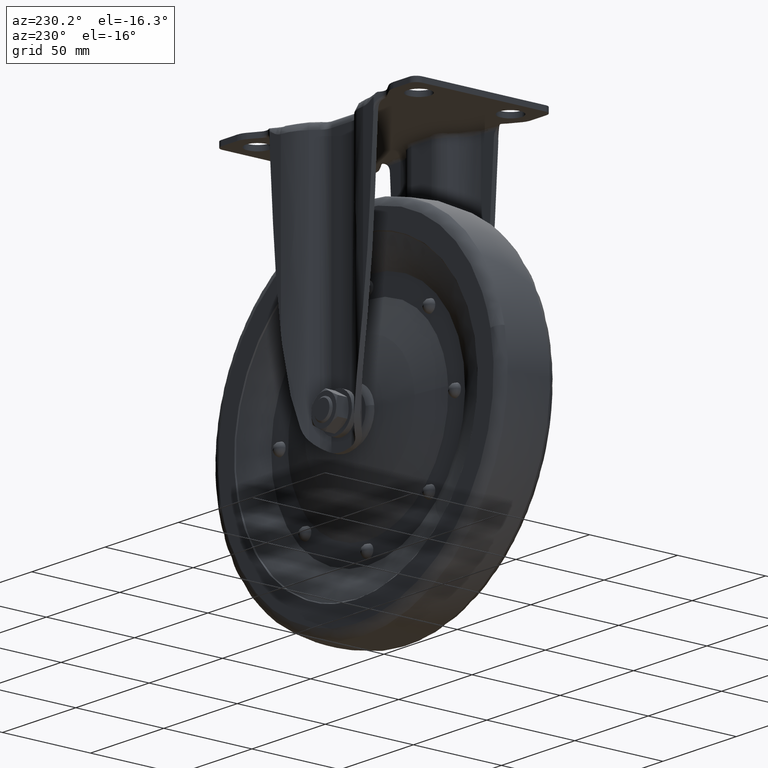
[diagram: clean part render]
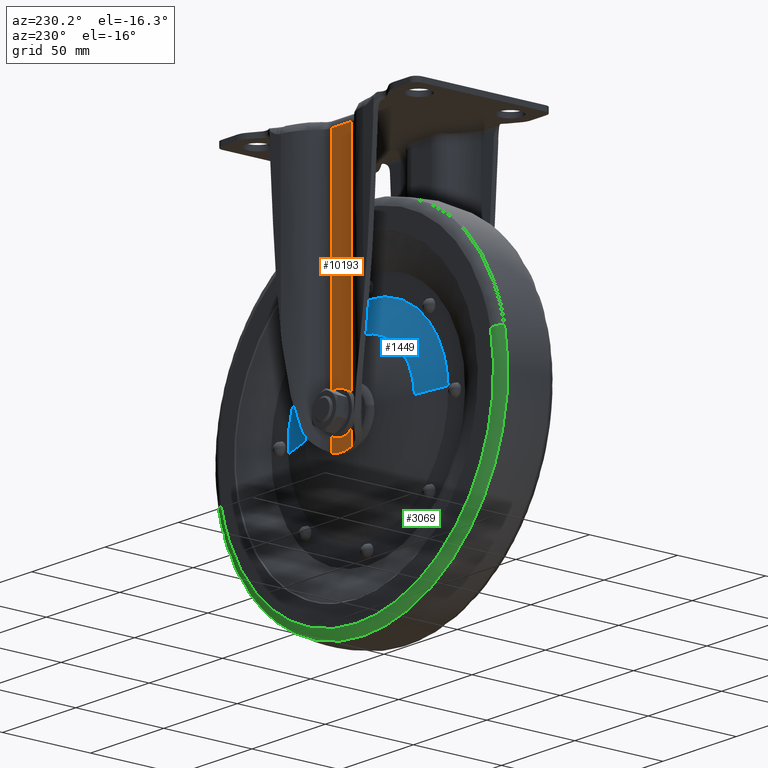
[diagram: same view with three faces highlighted in distinct colors, each labeled with its STEP entity id]
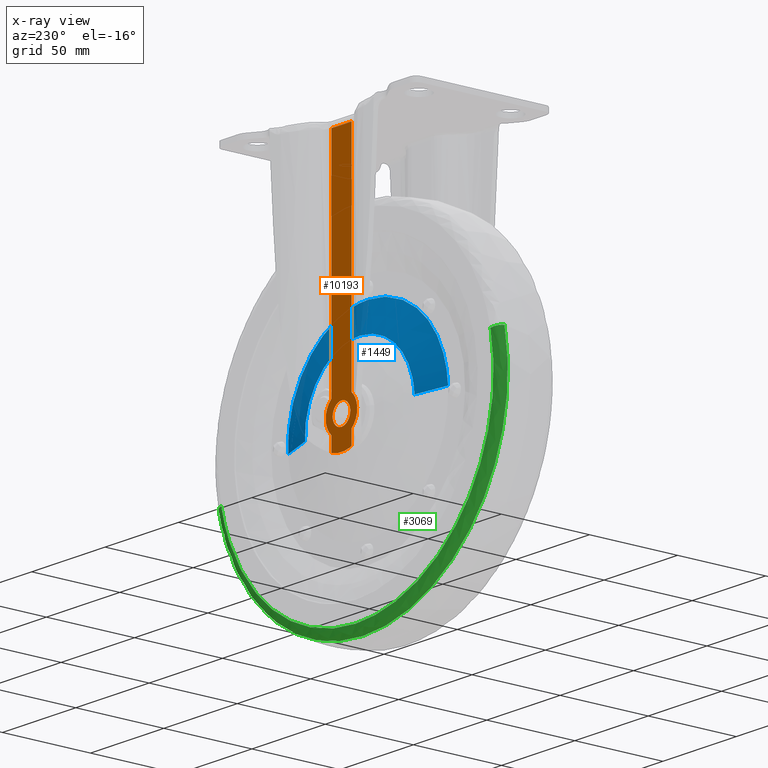
[diagram: x-ray of the same camera — body ghosted, the three highlighted faces saturated]
A machine part, auxiliary view with three faces highlighted in distinct colors.
The next image is the same camera in x-ray (body ghosted, the three faces saturated) — at least one of them is partly hidden behind the body in this view.
Their STEP definitions:

[orange] entity #10193 — the highlighted face is a freeform B-spline surface patch.
#5511=CARTESIAN_POINT('',(-5.999771538373601,24.149999999999999,-136.052359214299600));
#5512=VERTEX_POINT('',#5511);
#5518=CARTESIAN_POINT('',(0.0,24.149999999999999,-130.0));
#5519=VERTEX_POINT('',#5518);
#5520=CARTESIAN_POINT('',(0.0,24.149999999999999,-130.0));
#5521=CARTESIAN_POINT('',(-6.0,24.150000000000009,-130.0));
#5522=CARTESIAN_POINT('',(-6.0,24.149999999999999,-136.0));
#5523=CARTESIAN_POINT('',(-6.0,24.150000000000006,-136.026180105578850));
#5524=CARTESIAN_POINT('',(-5.999771538373603,24.150000000000009,-136.052359214299600));
#5532=(BOUNDED_CURVE()B_SPLINE_CURVE(2,(#5520,#5521,#5522,#5523,#5524),.UNSPECIFIED.,.F.,.U.)B_SPLINE_CURVE_WITH_KNOTS((3,2,3),(0.500000000000000,0.750000000000000,0.751539894373426),.UNSPECIFIED.)CURVE()GEOMETRIC_REPRESENTATION_ITEM()RATIONAL_B_SPLINE_CURVE((1.0,0.707106781186548,1.0,0.998195901521338,0.996414028011447))REPRESENTATION_ITEM(''));
#5533=EDGE_CURVE('',#5519,#5512,#5532,.T.);
#5535=CARTESIAN_POINT('',(5.999771538373601,24.149999999999999,-135.947640785700400));
#5536=VERTEX_POINT('',#5535);
#5537=CARTESIAN_POINT('',(5.999771538373601,24.150000000000006,-135.947640785700460));
#5538=CARTESIAN_POINT('',(5.947867262271819,24.150000000000002,-129.999999999999970));
#5539=CARTESIAN_POINT('',(0.0,24.149999999999999,-130.0));
#5547=(BOUNDED_CURVE()B_SPLINE_CURVE(2,(#5537,#5538,#5539),.UNSPECIFIED.,.F.,.U.)B_SPLINE_CURVE_WITH_KNOTS((3,3),(0.251539894373427,0.500000000000000),.UNSPECIFIED.)CURVE()GEOMETRIC_REPRESENTATION_ITEM()RATIONAL_B_SPLINE_CURVE((0.996414028011446,0.708910879665210,1.0))REPRESENTATION_ITEM(''));
#5548=EDGE_CURVE('',#5536,#5519,#5547,.T.);
#5594=CARTESIAN_POINT('',(0.0,24.149999999999999,-142.0));
#5595=VERTEX_POINT('',#5594);
#5596=CARTESIAN_POINT('',(0.0,24.149999999999999,-142.0));
#5597=CARTESIAN_POINT('',(6.0,24.150000000000009,-142.000000000000090));
#5598=CARTESIAN_POINT('',(6.0,24.149999999999999,-136.0));
#5599=CARTESIAN_POINT('',(5.999999999999999,24.150000000000002,-135.973819894421070));
#5600=CARTESIAN_POINT('',(5.999771538373601,24.150000000000002,-135.947640785700460));
#5608=(BOUNDED_CURVE()B_SPLINE_CURVE(2,(#5596,#5597,#5598,#5599,#5600),.UNSPECIFIED.,.F.,.U.)B_SPLINE_CURVE_WITH_KNOTS((3,2,3),(0.0,0.250000000000000,0.251539894373427),.UNSPECIFIED.)CURVE()GEOMETRIC_REPRESENTATION_ITEM()RATIONAL_B_SPLINE_CURVE((1.0,0.707106781186548,1.0,0.998195901521337,0.996414028011446))REPRESENTATION_ITEM(''));
#5609=EDGE_CURVE('',#5595,#5536,#5608,.T.);
#5611=CARTESIAN_POINT('',(-5.999771538373601,24.150000000000006,-136.052359214299600));
#5612=CARTESIAN_POINT('',(-5.947867262271819,24.150000000000002,-142.000000000000060));
#5613=CARTESIAN_POINT('',(0.0,24.149999999999999,-142.0));
#5621=(BOUNDED_CURVE()B_SPLINE_CURVE(2,(#5611,#5612,#5613),.UNSPECIFIED.,.F.,.U.)B_SPLINE_CURVE_WITH_KNOTS((3,3),(0.751539894373427,1.0),.UNSPECIFIED.)CURVE()GEOMETRIC_REPRESENTATION_ITEM()RATIONAL_B_SPLINE_CURVE((0.996414028011446,0.708910879665210,1.0))REPRESENTATION_ITEM(''));
#5622=EDGE_CURVE('',#5512,#5595,#5621,.T.);
#6314=CARTESIAN_POINT('',(-6.849839000000090,24.149999999999999,-144.285059183498790));
#6315=VERTEX_POINT('',#6314);
#6316=CARTESIAN_POINT('',(-6.849839000000079,24.149999999999999,-127.714940816501200));
#6317=VERTEX_POINT('',#6316);
#6371=CARTESIAN_POINT('',(-6.849839000000090,24.149999999999999,-144.285059183498790));
#6372=CARTESIAN_POINT('',(-7.419470051518438,24.150000000000102,-143.814259623367600));
#6373=CARTESIAN_POINT('',(-8.391502037472399,24.149999999999888,-142.825110485590190));
#6374=CARTESIAN_POINT('',(-9.619607238733465,24.149999999999991,-140.968583676639610));
#6375=CARTESIAN_POINT('',(-10.352037019948041,24.150000000000031,-139.124508411979210));
#6376=CARTESIAN_POINT('',(-10.748782584042861,24.149999999999991,-137.088640567818000));
#6377=CARTESIAN_POINT('',(-10.785539610436301,24.149999999999860,-135.305981759789290));
#6378=CARTESIAN_POINT('',(-10.489829482999200,24.149999999999981,-133.451914296509390));
#6379=CARTESIAN_POINT('',(-9.859774185208210,24.150000000000080,-131.525376578643200));
#6380=CARTESIAN_POINT('',(-8.695234859135695,24.149999999999039,-129.503432948488690));
#6381=CARTESIAN_POINT('',(-7.495463471569267,24.150000000000990,-128.248488515776390));
#6382=CARTESIAN_POINT('',(-6.849839000000079,24.149999999999999,-127.714940816501200));
#6383=B_SPLINE_CURVE_WITH_KNOTS('',3,(#6371,#6372,#6373,#6374,#6375,#6376,#6377,#6378,#6379,#6380,#6381,#6382),.UNSPECIFIED.,.F.,.U.,(4,1,1,1,1,1,1,1,1,4),(0.000000353534343,2.217004586097204,4.138505752643534,6.651238746744516,8.129314732941690,10.346219356164680,11.972127129180910,13.745784986751250,16.406289665833832,18.918944419435778),.UNSPECIFIED.);
#6384=EDGE_CURVE('',#6315,#6317,#6383,.T.);
#6403=CARTESIAN_POINT('',(6.849839999999920,24.149999999999999,-127.714941643271200));
#6404=VERTEX_POINT('',#6403);
#6405=CARTESIAN_POINT('',(6.849839999999920,24.149999999999999,-144.285058356728800));
#6406=VERTEX_POINT('',#6405);
#6466=CARTESIAN_POINT('',(6.849839999999920,24.149999999999999,-127.714941643271200));
#6467=CARTESIAN_POINT('',(7.723625241780807,24.150000000000020,-128.436549430988090));
#6468=CARTESIAN_POINT('',(8.975362908872892,24.150000000000031,-129.860067653499190));
#6469=CARTESIAN_POINT('',(10.075964529380361,24.149999999999942,-132.078600665119500));
#6470=CARTESIAN_POINT('',(10.639754744213880,24.150000000000031,-134.076873541679990));
#6471=CARTESIAN_POINT('',(10.829892451871061,24.150000000000261,-136.198131935289100));
#6472=CARTESIAN_POINT('',(10.512055102018820,24.149999999999739,-138.756022261958490));
#6473=CARTESIAN_POINT('',(9.666755658389890,24.150000000000230,-140.884250785403110));
#6474=CARTESIAN_POINT('',(8.386562930512637,24.150000000000031,-142.819198183097910));
#6475=CARTESIAN_POINT('',(7.495477718575718,24.149999999999981,-143.751511670251010));
#6476=CARTESIAN_POINT('',(6.849839999999920,24.149999999999999,-144.285058356728800));
#6477=B_SPLINE_CURVE_WITH_KNOTS('',3,(#6466,#6467,#6468,#6469,#6470,#6471,#6472,#6473,#6474,#6475,#6476),.UNSPECIFIED.,.F.,.U.,(4,1,1,1,1,1,1,1,4),(0.000000353485614,3.399486762731923,5.616583442938886,7.390223022321498,9.607191062845224,11.972125486964490,15.076051585206860,16.406287415380909,18.918941824342099),.UNSPECIFIED.);
#6478=EDGE_CURVE('',#6404,#6406,#6477,.T.);
#8136=CARTESIAN_POINT('',(-5.375360051059539,24.149999999999999,-152.764097949446490));
#8137=VERTEX_POINT('',#8136);
#8138=CARTESIAN_POINT('',(5.375360058640630,24.149999999999999,-152.764098843184000));
#8139=VERTEX_POINT('',#8138);
#8140=CARTESIAN_POINT('',(-5.375360051059539,24.149999999999999,-152.764097949446490));
#8141=CARTESIAN_POINT('',(-0.000000120901544,24.150000000000002,-154.264013095344640));
#8142=CARTESIAN_POINT('',(5.375360058640680,24.149999999999999,-152.764098843184200));
#8150=(BOUNDED_CURVE()B_SPLINE_CURVE(2,(#8140,#8141,#8142),.UNSPECIFIED.,.F.,.U.)CURVE()GEOMETRIC_REPRESENTATION_ITEM()QUASI_UNIFORM_CURVE()RATIONAL_B_SPLINE_CURVE((1.0,0.963204940594268,1.0))REPRESENTATION_ITEM(''));
#8151=EDGE_CURVE('',#8137,#8139,#8150,.T.);
#8420=CARTESIAN_POINT('',(-6.849839000000090,24.149999999999999,-152.286718354286510));
#8421=VERTEX_POINT('',#8420);
#8451=CARTESIAN_POINT('',(-6.849839000000052,24.149999999999999,-152.286718354286390));
#8452=CARTESIAN_POINT('',(-6.122390716286197,24.150000000000002,-152.555650132884720));
#8453=CARTESIAN_POINT('',(-5.375360051059494,24.149999999999999,-152.764097949446300));
#8461=(BOUNDED_CURVE()B_SPLINE_CURVE(2,(#8451,#8452,#8453),.UNSPECIFIED.,.F.,.U.)CURVE()GEOMETRIC_REPRESENTATION_ITEM()QUASI_UNIFORM_CURVE()RATIONAL_B_SPLINE_CURVE((1.0,0.999159716856303,1.0))REPRESENTATION_ITEM(''));
#8462=EDGE_CURVE('',#8421,#8137,#8461,.T.);
#8487=CARTESIAN_POINT('',(6.849840000000000,24.149999999999402,-152.286718354286510));
#8488=VERTEX_POINT('',#8487);
#8489=CARTESIAN_POINT('',(5.375360058640630,24.149999999999999,-152.764098843184000));
#8490=CARTESIAN_POINT('',(6.122391154392680,24.150000000000002,-152.555650340612200));
#8491=CARTESIAN_POINT('',(6.849839999999954,24.149999999999999,-152.286718354286390));
#8499=(BOUNDED_CURVE()B_SPLINE_CURVE(2,(#8489,#8490,#8491),.UNSPECIFIED.,.F.,.U.)CURVE()GEOMETRIC_REPRESENTATION_ITEM()QUASI_UNIFORM_CURVE()RATIONAL_B_SPLINE_CURVE((1.0,0.999159715559840,1.0))REPRESENTATION_ITEM(''));
#8500=EDGE_CURVE('',#8139,#8488,#8499,.T.);
#10126=CARTESIAN_POINT('',(6.849839999999920,24.149999999999999,-4.700000000000000));
#10127=VERTEX_POINT('',#10126);
#10128=CARTESIAN_POINT('',(6.849839999999920,24.149999999999999,-127.714941643271200));
#10129=CARTESIAN_POINT('',(6.849839999999920,24.149999999999999,-4.700000000000000));
#10130=QUASI_UNIFORM_CURVE('',1,(#10128,#10129),.UNSPECIFIED.,.F.,.U.);
#10131=EDGE_CURVE('',#6404,#10127,#10130,.T.);
#10148=CARTESIAN_POINT('',(6.849840000000000,24.149999999999402,-152.286718354286510));
#10149=CARTESIAN_POINT('',(6.849839999999920,24.149999999999999,-144.285058356728800));
#10150=QUASI_UNIFORM_CURVE('',1,(#10148,#10149),.UNSPECIFIED.,.F.,.U.);
#10151=EDGE_CURVE('',#8488,#6406,#10150,.T.);
#10156=CARTESIAN_POINT('',(-11.823924958328830,24.149999999999999,2.732559701023340));
#10157=CARTESIAN_POINT('',(-11.823924958328830,24.149999999999999,-160.932563480471000));
#10158=CARTESIAN_POINT('',(11.823925535003770,24.149999999999999,2.732559701023340));
#10159=CARTESIAN_POINT('',(11.823925535003770,24.149999999999999,-160.932563480471000));
#10160=B_SPLINE_SURFACE_WITH_KNOTS('',1,1,((#10156,#10158),(#10157,#10159)),.UNSPECIFIED.,.F.,.F.,.U.,(2,2),(2,2),(0.0,163.665123181494410),(0.0,23.647850493332601),.UNSPECIFIED.);
#10161=CARTESIAN_POINT('',(-6.849839000000090,24.149999999999999,-152.286718354286510));
#10162=CARTESIAN_POINT('',(-6.849839000000090,24.149999999999999,-144.285059183498790));
#10163=QUASI_UNIFORM_CURVE('',1,(#10161,#10162),.UNSPECIFIED.,.F.,.U.);
#10164=EDGE_CURVE('',#8421,#6315,#10163,.T.);
#10165=ORIENTED_EDGE('',*,*,#10164,.T.);
#10166=ORIENTED_EDGE('',*,*,#6384,.T.);
#10167=CARTESIAN_POINT('',(-6.849839000000090,24.149999999999999,-4.700000000000000));
#10168=VERTEX_POINT('',#10167);
#10169=CARTESIAN_POINT('',(-6.849839000000079,24.149999999999999,-127.714940816501200));
#10170=CARTESIAN_POINT('',(-6.849839000000090,24.149999999999999,-4.700000000000000));
#10171=QUASI_UNIFORM_CURVE('',1,(#10169,#10170),.UNSPECIFIED.,.F.,.U.);
#10172=EDGE_CURVE('',#6317,#10168,#10171,.T.);
#10173=ORIENTED_EDGE('',*,*,#10172,.T.);
#10174=CARTESIAN_POINT('',(-6.849839000000090,24.149999999999999,-4.700000000000000));
#10175=CARTESIAN_POINT('',(6.849839999999920,24.149999999999999,-4.700000000000000));
#10176=QUASI_UNIFORM_CURVE('',1,(#10174,#10175),.UNSPECIFIED.,.F.,.U.);
#10177=EDGE_CURVE('',#10168,#10127,#10176,.T.);
#10178=ORIENTED_EDGE('',*,*,#10177,.T.);
#10179=ORIENTED_EDGE('',*,*,#10131,.F.);
#10180=ORIENTED_EDGE('',*,*,#6478,.T.);
#10181=ORIENTED_EDGE('',*,*,#10151,.F.);
#10182=ORIENTED_EDGE('',*,*,#8500,.F.);
#10183=ORIENTED_EDGE('',*,*,#8151,.F.);
#10184=ORIENTED_EDGE('',*,*,#8462,.F.);
#10185=EDGE_LOOP('',(#10165,#10166,#10173,#10178,#10179,#10180,#10181,#10182,#10183,#10184));
#10186=FACE_OUTER_BOUND('',#10185,.T.);
#10187=ORIENTED_EDGE('',*,*,#5533,.T.);
#10188=ORIENTED_EDGE('',*,*,#5622,.T.);
#10189=ORIENTED_EDGE('',*,*,#5609,.T.);
#10190=ORIENTED_EDGE('',*,*,#5548,.T.);
#10191=EDGE_LOOP('',(#10187,#10188,#10189,#10190));
#10192=FACE_BOUND('',#10191,.T.);
#10193=ADVANCED_FACE('',(#10186,#10192),#10160,.F.);

[blue] entity #1449 — the highlighted face is a freeform B-spline surface patch.
#854=CARTESIAN_POINT('',(0.0,13.774160710108079,-98.659781960537657));
#855=VERTEX_POINT('',#854);
#886=CARTESIAN_POINT('',(-37.270571005935857,13.774160710066759,-133.720434221789790));
#887=VERTEX_POINT('',#886);
#903=CARTESIAN_POINT('',(0.0,13.774160710108079,-98.659781960537657));
#904=CARTESIAN_POINT('',(-35.126169648453292,13.774160710087340,-98.659781960533024));
#905=CARTESIAN_POINT('',(-37.270571005935871,13.774160710066765,-133.720434221789760));
#913=(BOUNDED_CURVE()B_SPLINE_CURVE(2,(#903,#904,#905),.UNSPECIFIED.,.F.,.U.)B_SPLINE_CURVE_WITH_KNOTS((3,3),(0.500000000000000,0.739332962237440),.UNSPECIFIED.)CURVE()GEOMETRIC_REPRESENTATION_ITEM()RATIONAL_B_SPLINE_CURVE((1.0,0.719603993288471,0.976072041663497))REPRESENTATION_ITEM(''));
#914=EDGE_CURVE('',#855,#887,#913,.T.);
#949=CARTESIAN_POINT('',(37.270571005935793,13.774160710066781,-138.279565778210210));
#950=VERTEX_POINT('',#949);
#951=CARTESIAN_POINT('',(37.270571005935800,13.774160710066786,-138.279565778210270));
#952=CARTESIAN_POINT('',(37.340218039608558,13.774160710067374,-137.140846843776900));
#953=CARTESIAN_POINT('',(37.340218039606249,13.774160710068010,-136.000000000008300));
#954=CARTESIAN_POINT('',(37.340218039530868,13.774160710088571,-98.659781960541991));
#955=CARTESIAN_POINT('',(0.0,13.774160710108079,-98.659781960537657));
#963=(BOUNDED_CURVE()B_SPLINE_CURVE(2,(#951,#952,#953,#954,#955),.UNSPECIFIED.,.F.,.U.)B_SPLINE_CURVE_WITH_KNOTS((3,2,3),(0.239332962237434,0.250000000000000,0.500000000000000),.UNSPECIFIED.)CURVE()GEOMETRIC_REPRESENTATION_ITEM()RATIONAL_B_SPLINE_CURVE((0.976072041663484,0.987502787898070,1.0,0.707106781186548,1.0))REPRESENTATION_ITEM(''));
#964=EDGE_CURVE('',#950,#855,#963,.T.);
#1383=CARTESIAN_POINT('',(36.839624261435951,13.893514727861151,-138.253207945188790));
#1384=CARTESIAN_POINT('',(39.092832206624728,13.893514727861151,-101.413583683752830));
#1385=CARTESIAN_POINT('',(2.253207945188778,13.893514727861151,-99.160375738564056));
#1386=CARTESIAN_POINT('',(-34.586416316247174,13.893514727861151,-96.907167793375265));
#1387=CARTESIAN_POINT('',(-36.839624261435951,13.893514727861151,-133.746792054811210));
#1388=CARTESIAN_POINT('',(54.950161195278220,8.877662131803469,-139.360895836394690));
#1389=CARTESIAN_POINT('',(58.311057031672924,8.877662131803469,-84.410734641116477));
#1390=CARTESIAN_POINT('',(3.360895836394692,8.877662131803469,-81.049838804721787));
#1391=CARTESIAN_POINT('',(-51.589265358883530,8.877662131803469,-77.688942968327083));
#1392=CARTESIAN_POINT('',(-54.950161195278220,8.877662131803469,-132.639104163605310));
#1400=(BOUNDED_SURFACE()B_SPLINE_SURFACE(2,1,((#1383,#1388),(#1384,#1389),(#1385,#1390),(#1386,#1391),(#1387,#1392)),.UNSPECIFIED.,.F.,.F.,.U.)B_SPLINE_SURFACE_WITH_KNOTS((3,2,3),(2,2),(0.0,91.214541593617128,182.429083187234310),(0.0,18.824911626931168),.UNSPECIFIED.)GEOMETRIC_REPRESENTATION_ITEM()RATIONAL_B_SPLINE_SURFACE(((1.0,1.0),(0.707106781186548,0.707106781186548),(1.0,1.0),(0.707106781186548,0.707106781186548),(1.0,1.0)))REPRESENTATION_ITEM('')SURFACE());
#1401=ORIENTED_EDGE('',*,*,#964,.T.);
#1402=ORIENTED_EDGE('',*,*,#914,.T.);
#1403=CARTESIAN_POINT('',(-54.508440782267172,8.999999999995653,-132.666120941337310));
#1404=VERTEX_POINT('',#1403);
#1405=CARTESIAN_POINT('',(-37.270571005935857,13.774160710066759,-133.720434221789790));
#1406=CARTESIAN_POINT('',(-54.508440782267172,8.999999999995653,-132.666120941337310));
#1407=QUASI_UNIFORM_CURVE('',1,(#1405,#1406),.UNSPECIFIED.,.F.,.U.);
#1408=EDGE_CURVE('',#887,#1404,#1407,.T.);
#1409=ORIENTED_EDGE('',*,*,#1408,.T.);
#1410=CARTESIAN_POINT('',(0.0,9.0,-81.389700000000005));
#1411=VERTEX_POINT('',#1410);
#1412=CARTESIAN_POINT('',(0.0,9.0,-81.389700000000005));
#1413=CARTESIAN_POINT('',(-51.372240525452249,8.999999999997828,-81.389699999999522));
#1414=CARTESIAN_POINT('',(-54.508440782267165,8.999999999995653,-132.666120941337400));
#1422=(BOUNDED_CURVE()B_SPLINE_CURVE(2,(#1412,#1413,#1414),.UNSPECIFIED.,.F.,.U.)B_SPLINE_CURVE_WITH_KNOTS((3,3),(0.500000000000000,0.739332962241648),.UNSPECIFIED.)CURVE()GEOMETRIC_REPRESENTATION_ITEM()RATIONAL_B_SPLINE_CURVE((1.0,0.719603993283542,0.976072041672514))REPRESENTATION_ITEM(''));
#1423=EDGE_CURVE('',#1411,#1404,#1422,.T.);
#1424=ORIENTED_EDGE('',*,*,#1423,.F.);
#1425=CARTESIAN_POINT('',(54.508440782267179,8.999999999995653,-139.333879058662600));
#1426=VERTEX_POINT('',#1425);
#1427=CARTESIAN_POINT('',(54.508440782267186,8.999999999995653,-139.333879058662660));
#1428=CARTESIAN_POINT('',(54.610300000015457,8.999999999995715,-137.668495569616650));
#1429=CARTESIAN_POINT('',(54.610300000015229,8.999999999995783,-136.000000000000910));
#1430=CARTESIAN_POINT('',(54.610300000007385,8.999999999997957,-81.389700000000445));
#1431=CARTESIAN_POINT('',(0.0,9.0,-81.389700000000005));
#1439=(BOUNDED_CURVE()B_SPLINE_CURVE(2,(#1427,#1428,#1429,#1430,#1431),.UNSPECIFIED.,.F.,.U.)B_SPLINE_CURVE_WITH_KNOTS((3,2,3),(0.239332962241648,0.250000000000000,0.500000000000000),.UNSPECIFIED.)CURVE()GEOMETRIC_REPRESENTATION_ITEM()RATIONAL_B_SPLINE_CURVE((0.976072041672515,0.987502787903006,1.0,0.707106781186548,1.0))REPRESENTATION_ITEM(''));
#1440=EDGE_CURVE('',#1426,#1411,#1439,.T.);
#1441=ORIENTED_EDGE('',*,*,#1440,.F.);
#1442=CARTESIAN_POINT('',(37.270571005935793,13.774160710066781,-138.279565778210210));
#1443=CARTESIAN_POINT('',(54.508440782267179,8.999999999995653,-139.333879058662600));
#1444=QUASI_UNIFORM_CURVE('',1,(#1442,#1443),.UNSPECIFIED.,.F.,.U.);
#1445=EDGE_CURVE('',#950,#1426,#1444,.T.);
#1446=ORIENTED_EDGE('',*,*,#1445,.F.);
#1447=EDGE_LOOP('',(#1401,#1402,#1409,#1424,#1441,#1446));
#1448=FACE_OUTER_BOUND('',#1447,.T.);
#1449=ADVANCED_FACE('',(#1448),#1400,.T.);

[green] entity #3069 — the highlighted face is a freeform B-spline surface patch.
#2837=CARTESIAN_POINT('',(-91.754506350571319,16.0,-116.094912291480100));
#2838=VERTEX_POINT('',#2837);
#2839=CARTESIAN_POINT('',(0.0,16.0,-229.888774341229890));
#2840=VERTEX_POINT('',#2839);
#2841=CARTESIAN_POINT('',(-91.754506350571319,15.999999999999998,-116.094912291480110));
#2842=CARTESIAN_POINT('',(-93.888774366239090,16.000000000000004,-125.933035648361700));
#2843=CARTESIAN_POINT('',(-93.888774364837730,16.0,-135.999999994878610));
#2844=CARTESIAN_POINT('',(-93.888774351768134,15.999999999999998,-229.888774338943730));
#2845=CARTESIAN_POINT('',(0.0,16.0,-229.888774341229890));
#2853=(BOUNDED_CURVE()B_SPLINE_CURVE(2,(#2841,#2842,#2843,#2844,#2845),.UNSPECIFIED.,.F.,.U.)B_SPLINE_CURVE_WITH_KNOTS((3,2,3),(0.713703258528110,0.750000000000000,1.0),.UNSPECIFIED.)CURVE()GEOMETRIC_REPRESENTATION_ITEM()RATIONAL_B_SPLINE_CURVE((0.927299386194423,0.957475722231434,1.0,0.707106781186548,1.0))REPRESENTATION_ITEM(''));
#2854=EDGE_CURVE('',#2838,#2840,#2853,.T.);
#2871=CARTESIAN_POINT('',(91.754506350571305,16.0,-155.905087708519890));
#2872=VERTEX_POINT('',#2871);
#2888=CARTESIAN_POINT('',(0.0,16.0,-229.888774341229890));
#2889=CARTESIAN_POINT('',(75.704594130356568,15.999999999999998,-229.888774344065210));
#2890=CARTESIAN_POINT('',(91.754506350571305,16.000000000000007,-155.905087708519830));
#2898=(BOUNDED_CURVE()B_SPLINE_CURVE(2,(#2888,#2889,#2890),.UNSPECIFIED.,.F.,.U.)B_SPLINE_CURVE_WITH_KNOTS((3,3),(0.0,0.213703258528110),.UNSPECIFIED.)CURVE()GEOMETRIC_REPRESENTATION_ITEM()RATIONAL_B_SPLINE_CURVE((1.0,0.749631058955114,0.927299386194423))REPRESENTATION_ITEM(''));
#2899=EDGE_CURVE('',#2840,#2872,#2898,.T.);
#2941=CARTESIAN_POINT('',(-96.542121274557928,12.000015035966030,-115.056294149369900));
#2942=VERTEX_POINT('',#2941);
#2943=CARTESIAN_POINT('',(-91.754506350571319,15.999999999999996,-116.094912291480180));
#2944=CARTESIAN_POINT('',(-95.744175183197385,16.000000124560483,-115.229399400956570));
#2945=CARTESIAN_POINT('',(-96.542121274557928,12.000015035966037,-115.056294149369990));
#2953=(BOUNDED_CURVE()B_SPLINE_CURVE(2,(#2943,#2944,#2945),.UNSPECIFIED.,.F.,.U.)B_SPLINE_CURVE_WITH_KNOTS((3,3),(-1.705093536923866,-0.295239719776198),.UNSPECIFIED.)CURVE()GEOMETRIC_REPRESENTATION_ITEM()RATIONAL_B_SPLINE_CURVE((0.897635429800368,0.695269225031766,0.897539783066886))REPRESENTATION_ITEM(''));
#2954=EDGE_CURVE('',#2838,#2942,#2953,.T.);
#2971=CARTESIAN_POINT('',(96.542121274554972,12.000015035980789,-156.943705850629410));
#2972=VERTEX_POINT('',#2971);
#2988=CARTESIAN_POINT('',(91.754506350571305,16.000000000000007,-155.905087708519910));
#2989=CARTESIAN_POINT('',(95.744175183185106,16.000000124560518,-156.770600599040880));
#2990=CARTESIAN_POINT('',(96.542121274554972,12.000015035980793,-156.943705850629410));
#2998=(BOUNDED_CURVE()B_SPLINE_CURVE(2,(#2988,#2989,#2990),.UNSPECIFIED.,.F.,.U.)B_SPLINE_CURVE_WITH_KNOTS((3,3),(-1.705093536923873,-0.295239719779556),.UNSPECIFIED.)CURVE()GEOMETRIC_REPRESENTATION_ITEM()RATIONAL_B_SPLINE_CURVE((0.897635429800370,0.695269225032247,0.897539783065923))REPRESENTATION_ITEM(''));
#2999=EDGE_CURVE('',#2872,#2972,#2998,.T.);
#3004=CARTESIAN_POINT('',(-90.894896862349952,15.990251617218567,-113.604443252776190));
#3005=CARTESIAN_POINT('',(-91.170597673308166,15.990251617218567,-114.875313905606800));
#3006=CARTESIAN_POINT('',(-111.288454785896080,15.990251617218568,-207.610602254474510));
#3007=CARTESIAN_POINT('',(-19.838926265710853,15.990251617218565,-227.449528520185170));
#3008=CARTESIAN_POINT('',(71.610602254474372,15.990251617218568,-247.288454785896160));
#3009=CARTESIAN_POINT('',(91.728459366989242,15.990251617218560,-154.553166437365180));
#3010=CARTESIAN_POINT('',(92.004160177876088,15.990251617218567,-153.282295784863550));
#3011=CARTESIAN_POINT('',(-95.385064768976648,16.279334830864787,-112.498112604646280));
#3012=CARTESIAN_POINT('',(-95.674385078673808,16.279334830864780,-113.831763708479000));
#3013=CARTESIAN_POINT('',(-116.786055479744150,16.279334830864784,-211.148134493541510));
#3014=CARTESIAN_POINT('',(-20.818960493101311,16.279334830864777,-231.967094986642760));
#3015=CARTESIAN_POINT('',(75.148134493541548,16.279334830864784,-252.786055479744220));
#3016=CARTESIAN_POINT('',(96.259804894535264,16.279334830864787,-155.469684695035080));
#3017=CARTESIAN_POINT('',(96.549125204157548,16.279334830864780,-154.136033591547570));
#3018=CARTESIAN_POINT('',(-96.007955696159996,11.692264191755546,-112.344638761904650));
#3019=CARTESIAN_POINT('',(-96.299165347720049,11.692264191755546,-113.686998977322290));
#3020=CARTESIAN_POINT('',(-117.548700811652850,11.692264191755550,-211.638872653484730));
#3021=CARTESIAN_POINT('',(-20.954914079084094,11.692264191755555,-232.593786732568760));
#3022=CARTESIAN_POINT('',(75.638872653484697,11.692264191755550,-253.548700811652910));
#3023=CARTESIAN_POINT('',(96.888408117340305,11.692264191755553,-155.596827135846180));
#3024=CARTESIAN_POINT('',(97.179617768824954,11.692264191755552,-154.254466920776000));
#3032=(BOUNDED_SURFACE()B_SPLINE_SURFACE(2,2,((#3004,#3011,#3018),(#3005,#3012,#3019),(#3006,#3013,#3020),(#3007,#3014,#3021),(#3008,#3015,#3022),(#3009,#3016,#3023),(#3010,#3017,#3024)),.UNSPECIFIED.,.F.,.F.,.U.)B_SPLINE_SURFACE_WITH_KNOTS((3,1,2,1,3),(3,3),(0.0,3.275290009009562,167.039790418655510,330.804290828301420,334.079580836448090),(0.0,7.841773544484763),.UNSPECIFIED.)GEOMETRIC_REPRESENTATION_ITEM()RATIONAL_B_SPLINE_SURFACE(((0.929626502792550,0.681945018534234,0.929520080232155),(0.924243937492314,0.677996536447714,0.924138131121732),(0.649733107247395,0.476623950084399,0.649658726557259),(0.918861372192078,0.674048054361193,0.918756182011309),(0.649733107247395,0.476623950084399,0.649658726557259),(0.924243937490896,0.677996536446674,0.924138131120314),(0.929626502789714,0.681945018532154,0.929520080229319)))REPRESENTATION_ITEM('')SURFACE());
#3033=ORIENTED_EDGE('',*,*,#2899,.T.);
#3034=ORIENTED_EDGE('',*,*,#2999,.T.);
#3035=CARTESIAN_POINT('',(0.0,12.000015328619570,-234.787750697850810));
#3036=VERTEX_POINT('',#3035);
#3037=CARTESIAN_POINT('',(0.0,12.000015328619570,-234.787750697850810));
#3038=CARTESIAN_POINT('',(79.654748330805901,12.000015182313897,-234.787750545795920));
#3039=CARTESIAN_POINT('',(96.542121274554972,12.000015035980789,-156.943705850629410));
#3047=(BOUNDED_CURVE()B_SPLINE_CURVE(2,(#3037,#3038,#3039),.UNSPECIFIED.,.F.,.U.)B_SPLINE_CURVE_WITH_KNOTS((3,3),(0.0,0.213703257453438),.UNSPECIFIED.)CURVE()GEOMETRIC_REPRESENTATION_ITEM()RATIONAL_B_SPLINE_CURVE((1.0,0.749631060214170,0.927299384407505))REPRESENTATION_ITEM(''));
#3048=EDGE_CURVE('',#3036,#2972,#3047,.T.);
#3049=ORIENTED_EDGE('',*,*,#3048,.F.);
#3050=CARTESIAN_POINT('',(-96.542121274557928,12.000015035966035,-115.056294149369950));
#3051=CARTESIAN_POINT('',(-98.787752485569968,12.000015048618634,-125.407756416779880));
#3052=CARTESIAN_POINT('',(-98.787752560723348,12.000015064309590,-136.000000274652900));
#3053=CARTESIAN_POINT('',(-98.787753261635402,12.000015210650071,-234.787750820455950));
#3054=CARTESIAN_POINT('',(0.0,12.000015328619570,-234.787750697850810));
#3062=(BOUNDED_CURVE()B_SPLINE_CURVE(2,(#3050,#3051,#3052,#3053,#3054),.UNSPECIFIED.,.F.,.U.)B_SPLINE_CURVE_WITH_KNOTS((3,2,3),(0.713703257453461,0.750000000000000,1.0),.UNSPECIFIED.)CURVE()GEOMETRIC_REPRESENTATION_ITEM()RATIONAL_B_SPLINE_CURVE((0.927299384407543,0.957475720972405,1.0,0.707106781186548,1.0))REPRESENTATION_ITEM(''));
#3063=EDGE_CURVE('',#2942,#3036,#3062,.T.);
#3064=ORIENTED_EDGE('',*,*,#3063,.F.);
#3065=ORIENTED_EDGE('',*,*,#2954,.F.);
#3066=ORIENTED_EDGE('',*,*,#2854,.T.);
#3067=EDGE_LOOP('',(#3033,#3034,#3049,#3064,#3065,#3066));
#3068=FACE_OUTER_BOUND('',#3067,.T.);
#3069=ADVANCED_FACE('',(#3068),#3032,.T.);